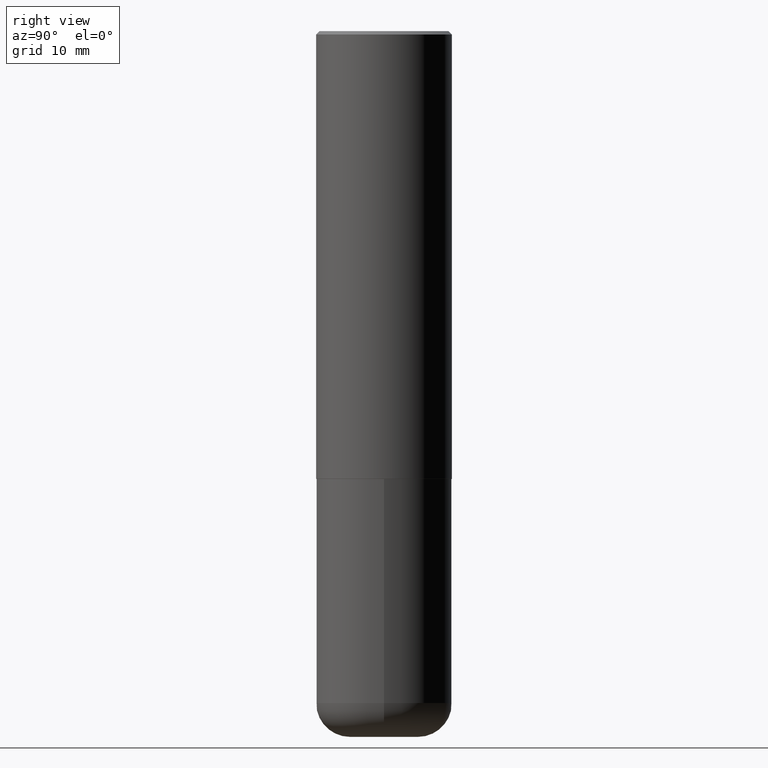
[diagram: clean part render]
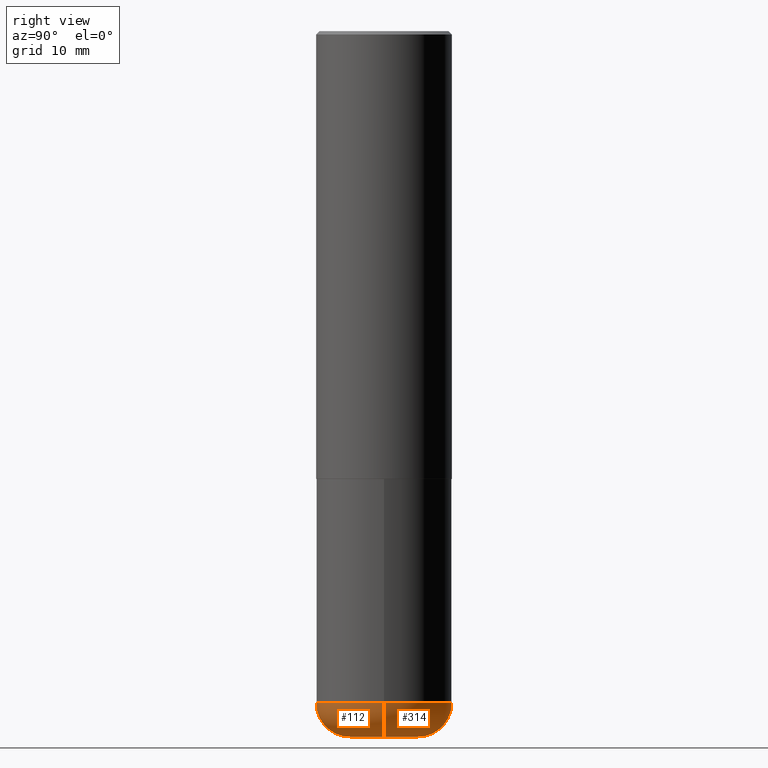
[diagram: same view with one multi-face feature highlighted, each face labeled with its STEP entity id]
A machine part, right view. The highlighted faces form ONE feature: a constant-radius fillet chain: 2 tangent blend faces with common blend radius 5.0013 mm. The faces share edges in the B-rep.
Their STEP definitions:
[1] entity #314 (Torus):
#1 = AXIS2_PLACEMENT_3D ( 'NONE', #292, #386, #190 ) ;
#9 = CIRCLE ( 'NONE', #352, 0.1968999999999996586 ) ;
#22 = FACE_OUTER_BOUND ( 'NONE', #377, .T. ) ;
#24 = EDGE_CURVE ( 'NONE', #306, #131, #197, .T. ) ;
#31 = EDGE_CURVE ( 'NONE', #306, #318, #336, .T. ) ;
#57 = EDGE_CURVE ( 'NONE', #131, #351, #9, .T. ) ;
#64 = DIRECTION ( 'NONE',  ( 1.000000000000000000, -6.982962677686264344E-15, 4.883557194083112340E-29 ) ) ;
#73 = ORIENTED_EDGE ( 'NONE', *, *, #277, .F. ) ;
#111 = AXIS2_PLACEMENT_3D ( 'NONE', #359, #160, #195 ) ;
#122 = CARTESIAN_POINT ( 'NONE',  ( -0.1968000000000000305, -1.221004956229916800E-14, -3.897600000000000620 ) ) ;
#123 = CARTESIAN_POINT ( 'NONE',  ( 0.3936999999999998279, -1.635759007248013057E-14, -3.897600000000000620 ) ) ;
#126 = AXIS2_PLACEMENT_3D ( 'NONE', #356, #289, #64 ) ;
#131 = VERTEX_POINT ( 'NONE', #242 ) ;
#158 = ORIENTED_EDGE ( 'NONE', *, *, #57, .T. ) ;
#160 = DIRECTION ( 'NONE',  ( -2.445468806185136597E-29, 3.491481338843145583E-15, 1.000000000000000000 ) ) ;
#188 = CIRCLE ( 'NONE', #1, 0.3937000000000000499 ) ;
#190 = DIRECTION ( 'NONE',  ( 1.000000000000000000, -6.982962677686267499E-15, 0.000000000000000000 ) ) ;
#195 = DIRECTION ( 'NONE',  ( 1.000000000000000000, -6.982962677686269866E-15, 0.000000000000000000 ) ) ;
#197 = CIRCLE ( 'NONE', #111, 0.1968000000000000582 ) ;
#242 = CARTESIAN_POINT ( 'NONE',  ( -0.1968000000000000582, -1.185425657675245696E-14, -4.094500000000000028 ) ) ;
#245 = DIRECTION ( 'NONE',  ( -1.000000000000000000, 7.105427357601005014E-15, 0.000000000000000000 ) ) ;
#249 = DIRECTION ( 'NONE',  ( 1.000000000000000000, -6.982962677686267499E-15, 0.000000000000000000 ) ) ;
#258 = CARTESIAN_POINT ( 'NONE',  ( -0.3936999999999998279, -1.081099091558753178E-14, -3.897600000000000620 ) ) ;
#269 = ORIENTED_EDGE ( 'NONE', *, *, #31, .F. ) ;
#277 = EDGE_CURVE ( 'NONE', #318, #351, #188, .T. ) ;
#282 = CARTESIAN_POINT ( 'NONE',  ( 0.1968000000000000582, -1.567011739686191643E-14, -4.094500000000000028 ) ) ;
#289 = DIRECTION ( 'NONE',  ( -2.445468806185136597E-29, 3.491481338843145583E-15, 1.000000000000000000 ) ) ;
#290 = DIRECTION ( 'NONE',  ( -6.982962677686266711E-15, -1.000000000000000000, 3.491481338843145583E-15 ) ) ;
#292 = CARTESIAN_POINT ( 'NONE',  ( 9.531459218987190195E-29, -1.360839766627504578E-14, -3.897600000000000620 ) ) ;
#303 = TOROIDAL_SURFACE ( 'NONE', #126, 0.1968000000000000305, 0.1968999999999996031 ) ;
#306 = VERTEX_POINT ( 'NONE', #282 ) ;
#314 = ADVANCED_FACE ( 'NONE', ( #22 ), #303, .T. ) ;
#318 = VERTEX_POINT ( 'NONE', #123 ) ;
#323 = DIRECTION ( 'NONE',  ( 7.105427357601001859E-15, 1.000000000000000000, -3.491481338843145583E-15 ) ) ;
#336 = CIRCLE ( 'NONE', #397, 0.1968999999999996586 ) ;
#351 = VERTEX_POINT ( 'NONE', #258 ) ;
#352 = AXIS2_PLACEMENT_3D ( 'NONE', #122, #323, #245 ) ;
#356 = CARTESIAN_POINT ( 'NONE',  ( 9.531459218987190195E-29, -1.360839766627504578E-14, -3.897600000000000620 ) ) ;
#359 = CARTESIAN_POINT ( 'NONE',  ( 1.001297202692504102E-28, -1.429587034189325834E-14, -4.094500000000000028 ) ) ;
#360 = CARTESIAN_POINT ( 'NONE',  ( 0.1968000000000000305, -1.498264472124370230E-14, -3.897600000000000620 ) ) ;
#377 = EDGE_LOOP ( 'NONE', ( #378, #158, #73, #269 ) ) ;
#378 = ORIENTED_EDGE ( 'NONE', *, *, #24, .T. ) ;
#386 = DIRECTION ( 'NONE',  ( -2.445468806185136597E-29, 3.491481338843145583E-15, 1.000000000000000000 ) ) ;
#397 = AXIS2_PLACEMENT_3D ( 'NONE', #360, #290, #249 ) ;
[2] entity #112 (Torus):
#9 = CIRCLE ( 'NONE', #352, 0.1968999999999996586 ) ;
#21 = CARTESIAN_POINT ( 'NONE',  ( 9.531459218987190195E-29, -1.360839766627504578E-14, -3.897600000000000620 ) ) ;
#27 = CIRCLE ( 'NONE', #43, 0.1968000000000000582 ) ;
#31 = EDGE_CURVE ( 'NONE', #306, #318, #336, .T. ) ;
#42 = FACE_OUTER_BOUND ( 'NONE', #200, .T. ) ;
#43 = AXIS2_PLACEMENT_3D ( 'NONE', #205, #210, #342 ) ;
#47 = CARTESIAN_POINT ( 'NONE',  ( 9.531459218987190195E-29, -1.360839766627504578E-14, -3.897600000000000620 ) ) ;
#57 = EDGE_CURVE ( 'NONE', #131, #351, #9, .T. ) ;
#90 = ORIENTED_EDGE ( 'NONE', *, *, #394, .T. ) ;
#112 = ADVANCED_FACE ( 'NONE', ( #42 ), #115, .T. ) ;
#115 = TOROIDAL_SURFACE ( 'NONE', #283, 0.1968000000000000305, 0.1968999999999996031 ) ;
#122 = CARTESIAN_POINT ( 'NONE',  ( -0.1968000000000000305, -1.221004956229916800E-14, -3.897600000000000620 ) ) ;
#123 = CARTESIAN_POINT ( 'NONE',  ( 0.3936999999999998279, -1.635759007248013057E-14, -3.897600000000000620 ) ) ;
#131 = VERTEX_POINT ( 'NONE', #242 ) ;
#134 = AXIS2_PLACEMENT_3D ( 'NONE', #21, #259, #191 ) ;
#145 = ORIENTED_EDGE ( 'NONE', *, *, #226, .F. ) ;
#191 = DIRECTION ( 'NONE',  ( 1.000000000000000000, -6.982962677686267499E-15, 0.000000000000000000 ) ) ;
#199 = ORIENTED_EDGE ( 'NONE', *, *, #31, .T. ) ;
#200 = EDGE_LOOP ( 'NONE', ( #399, #90, #199, #145 ) ) ;
#205 = CARTESIAN_POINT ( 'NONE',  ( 1.001297202692504102E-28, -1.429587034189325834E-14, -4.094500000000000028 ) ) ;
#210 = DIRECTION ( 'NONE',  ( -2.445468806185136597E-29, 3.491481338843145583E-15, 1.000000000000000000 ) ) ;
#226 = EDGE_CURVE ( 'NONE', #351, #318, #325, .T. ) ;
#242 = CARTESIAN_POINT ( 'NONE',  ( -0.1968000000000000582, -1.185425657675245696E-14, -4.094500000000000028 ) ) ;
#245 = DIRECTION ( 'NONE',  ( -1.000000000000000000, 7.105427357601005014E-15, 0.000000000000000000 ) ) ;
#249 = DIRECTION ( 'NONE',  ( 1.000000000000000000, -6.982962677686267499E-15, 0.000000000000000000 ) ) ;
#258 = CARTESIAN_POINT ( 'NONE',  ( -0.3936999999999998279, -1.081099091558753178E-14, -3.897600000000000620 ) ) ;
#259 = DIRECTION ( 'NONE',  ( -2.445468806185136597E-29, 3.491481338843145583E-15, 1.000000000000000000 ) ) ;
#266 = DIRECTION ( 'NONE',  ( 1.000000000000000000, -6.982962677686264344E-15, 4.883557194083112340E-29 ) ) ;
#282 = CARTESIAN_POINT ( 'NONE',  ( 0.1968000000000000582, -1.567011739686191643E-14, -4.094500000000000028 ) ) ;
#283 = AXIS2_PLACEMENT_3D ( 'NONE', #47, #339, #266 ) ;
#290 = DIRECTION ( 'NONE',  ( -6.982962677686266711E-15, -1.000000000000000000, 3.491481338843145583E-15 ) ) ;
#306 = VERTEX_POINT ( 'NONE', #282 ) ;
#318 = VERTEX_POINT ( 'NONE', #123 ) ;
#323 = DIRECTION ( 'NONE',  ( 7.105427357601001859E-15, 1.000000000000000000, -3.491481338843145583E-15 ) ) ;
#325 = CIRCLE ( 'NONE', #134, 0.3937000000000000499 ) ;
#336 = CIRCLE ( 'NONE', #397, 0.1968999999999996586 ) ;
#339 = DIRECTION ( 'NONE',  ( -2.445468806185136597E-29, 3.491481338843145583E-15, 1.000000000000000000 ) ) ;
#342 = DIRECTION ( 'NONE',  ( 1.000000000000000000, -6.982962677686269866E-15, 0.000000000000000000 ) ) ;
#351 = VERTEX_POINT ( 'NONE', #258 ) ;
#352 = AXIS2_PLACEMENT_3D ( 'NONE', #122, #323, #245 ) ;
#360 = CARTESIAN_POINT ( 'NONE',  ( 0.1968000000000000305, -1.498264472124370230E-14, -3.897600000000000620 ) ) ;
#394 = EDGE_CURVE ( 'NONE', #131, #306, #27, .T. ) ;
#397 = AXIS2_PLACEMENT_3D ( 'NONE', #360, #290, #249 ) ;
#399 = ORIENTED_EDGE ( 'NONE', *, *, #57, .F. ) ;